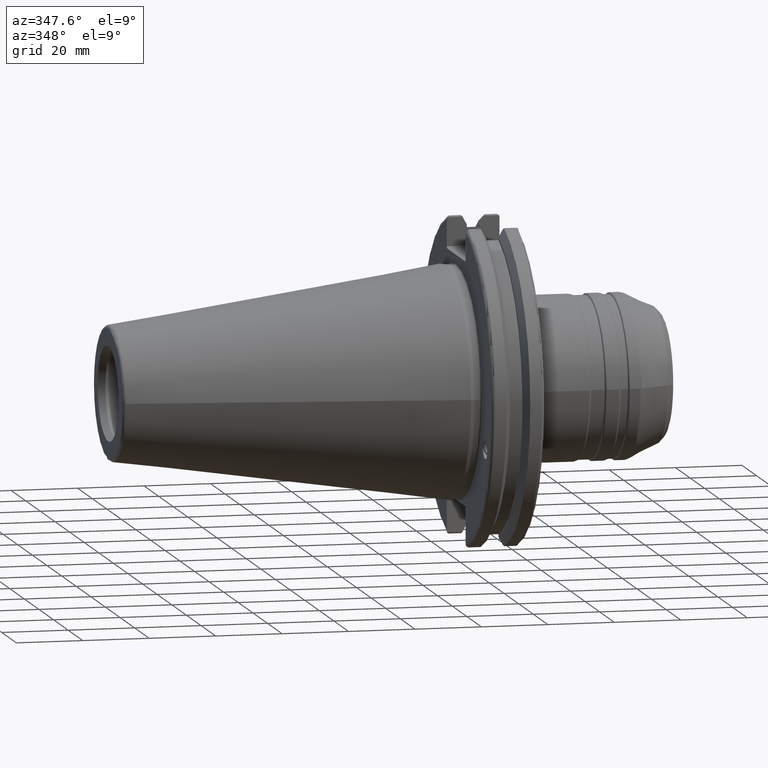
[diagram: clean part render]
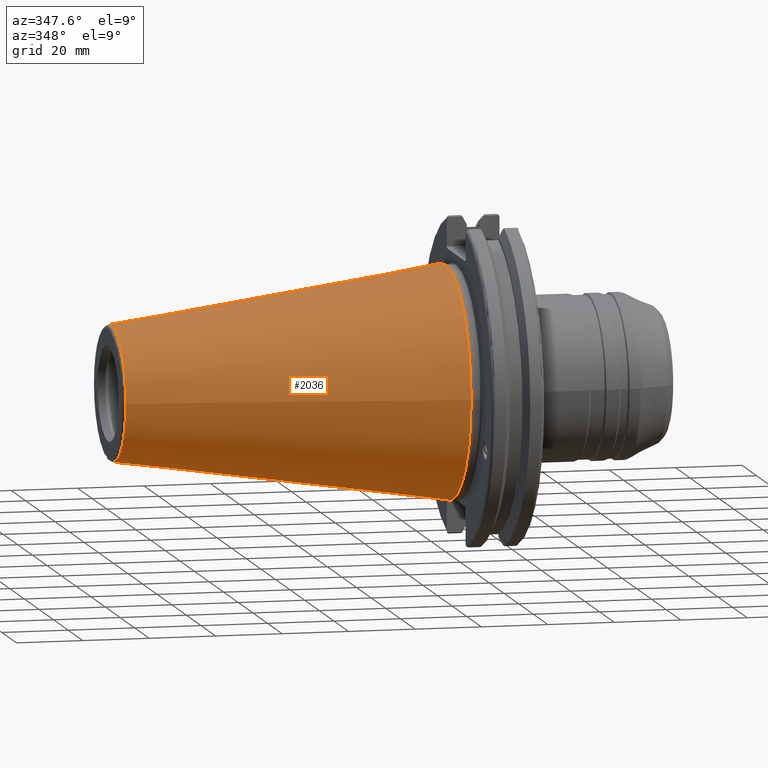
[diagram: same view with one face highlighted and labeled with its STEP entity id]
A machine part, auxiliary view. The second image highlights one B-rep face of the part: STEP entity #2036.
In plain terms, the highlighted conical surface has half-angle 8.297 deg.
Its self-contained STEP definition (entity closure, byte-faithful):
#62=CONICAL_SURFACE('',#2326,27.5166666666666,0.14481249823894);
#215=LINE('',#3822,#311);
#311=VECTOR('',#2940,27.5166666666666);
#432=FACE_OUTER_BOUND('',#548,.T.);
#548=EDGE_LOOP('',(#1795,#1796,#1797,#1798,#1799,#1800,#1801));
#722=CIRCLE('',#2317,20.233121911427);
#723=CIRCLE('',#2318,20.233121911427);
#727=CIRCLE('',#2322,20.233121911427);
#730=CIRCLE('',#2327,34.925);
#731=CIRCLE('',#2328,34.925);
#953=VERTEX_POINT('',#3801);
#954=VERTEX_POINT('',#3802);
#955=VERTEX_POINT('',#3804);
#960=VERTEX_POINT('',#3818);
#961=VERTEX_POINT('',#3819);
#1248=EDGE_CURVE('',#953,#954,#722,.T.);
#1249=EDGE_CURVE('',#954,#955,#723,.T.);
#1253=EDGE_CURVE('',#955,#953,#727,.T.);
#1256=EDGE_CURVE('',#960,#961,#730,.T.);
#1257=EDGE_CURVE('',#961,#960,#731,.T.);
#1258=EDGE_CURVE('',#961,#954,#215,.T.);
#1795=ORIENTED_EDGE('',*,*,#1256,.F.);
#1796=ORIENTED_EDGE('',*,*,#1257,.F.);
#1797=ORIENTED_EDGE('',*,*,#1258,.T.);
#1798=ORIENTED_EDGE('',*,*,#1248,.F.);
#1799=ORIENTED_EDGE('',*,*,#1253,.F.);
#1800=ORIENTED_EDGE('',*,*,#1249,.F.);
#1801=ORIENTED_EDGE('',*,*,#1258,.F.);
#2036=ADVANCED_FACE('',(#432),#62,.T.);
#2317=AXIS2_PLACEMENT_3D('',#3803,#2916,#2917);
#2318=AXIS2_PLACEMENT_3D('',#3805,#2918,#2919);
#2322=AXIS2_PLACEMENT_3D('',#3811,#2926,#2927);
#2326=AXIS2_PLACEMENT_3D('',#3817,#2934,#2935);
#2327=AXIS2_PLACEMENT_3D('',#3820,#2936,#2937);
#2328=AXIS2_PLACEMENT_3D('',#3821,#2938,#2939);
#2916=DIRECTION('center_axis',(-1.,0.,0.));
#2917=DIRECTION('ref_axis',(0.,-1.,3.06161699786838E-17));
#2918=DIRECTION('center_axis',(-1.,0.,0.));
#2919=DIRECTION('ref_axis',(0.,-1.,3.06161699786838E-17));
#2926=DIRECTION('center_axis',(-1.,0.,0.));
#2927=DIRECTION('ref_axis',(0.,-1.,3.06161699786838E-17));
#2934=DIRECTION('center_axis',(1.,0.,0.));
#2935=DIRECTION('ref_axis',(0.,1.,0.));
#2936=DIRECTION('center_axis',(1.,0.,0.));
#2937=DIRECTION('ref_axis',(0.,0.,-1.));
#2938=DIRECTION('center_axis',(1.,0.,0.));
#2939=DIRECTION('ref_axis',(0.,0.,-1.));
#2940=DIRECTION('',(-0.989532981063281,0.144306893071729,1.76724974695192E-17));
#3801=CARTESIAN_POINT('',(-100.744306893072,20.233121911427,-6.19460699639681E-15));
#3802=CARTESIAN_POINT('',(-100.744306893072,-20.233121911427,-2.47784279855872E-15));
#3803=CARTESIAN_POINT('Origin',(-100.744306893072,0.,-3.09730349819841E-15));
#3804=CARTESIAN_POINT('',(-100.744306893072,-2.47784279855872E-15,20.233121911427));
#3805=CARTESIAN_POINT('Origin',(-100.744306893072,0.,-3.09730349819841E-15));
#3811=CARTESIAN_POINT('Origin',(-100.744306893072,0.,-3.09730349819841E-15));
#3817=CARTESIAN_POINT('Origin',(-50.8,0.,0.));
#3818=CARTESIAN_POINT('',(0.,34.925,0.));
#3819=CARTESIAN_POINT('',(-8.88178419700125E-15,-34.925,-4.27707894602213E-15));
#3820=CARTESIAN_POINT('Origin',(0.,0.,0.));
#3821=CARTESIAN_POINT('Origin',(0.,0.,0.));
#3822=CARTESIAN_POINT('',(-50.8,-27.5166666666666,-3.3698197756538E-15));